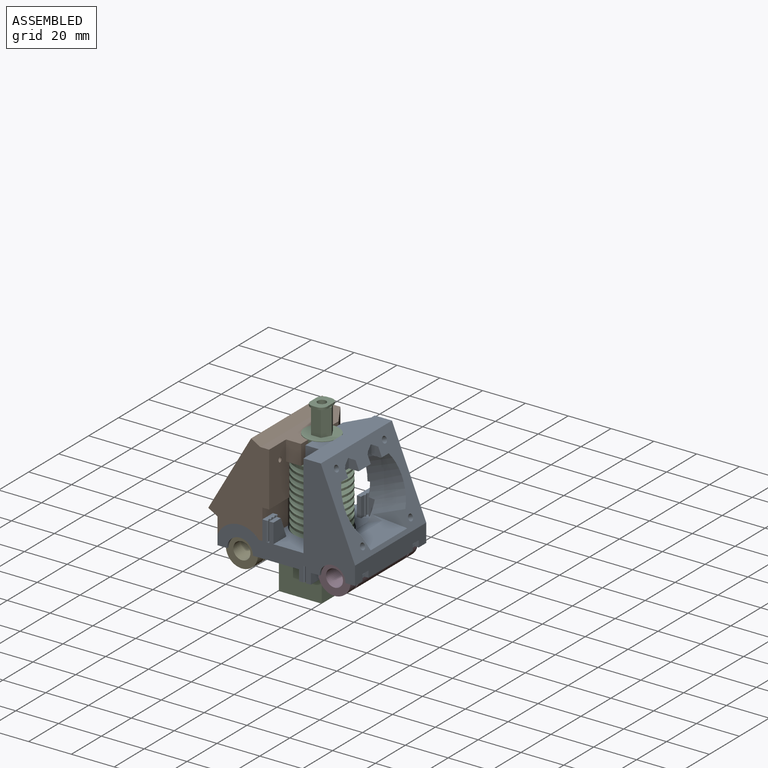
[diagram: assembled view]
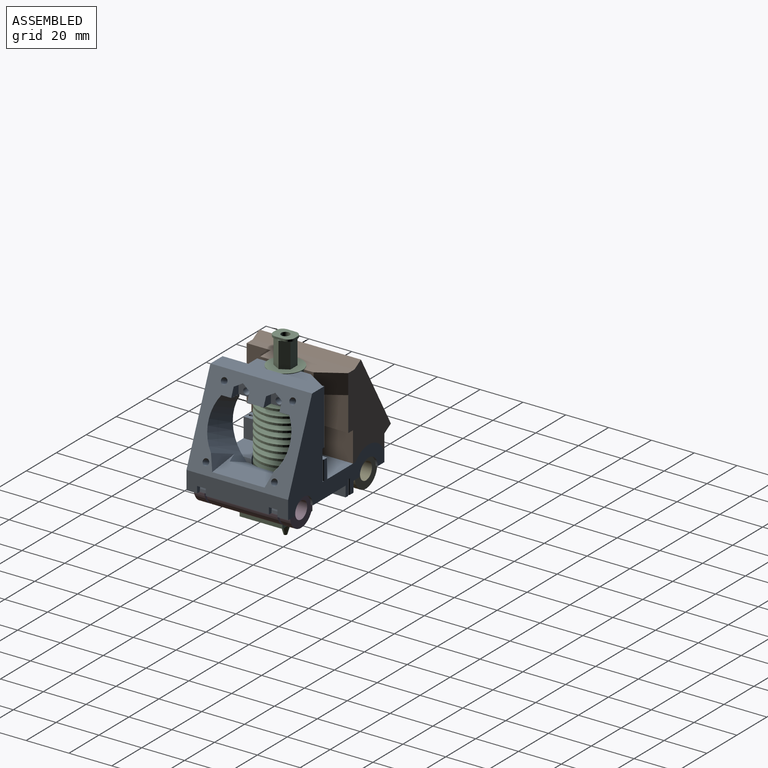
[diagram: assembled view, second angle]
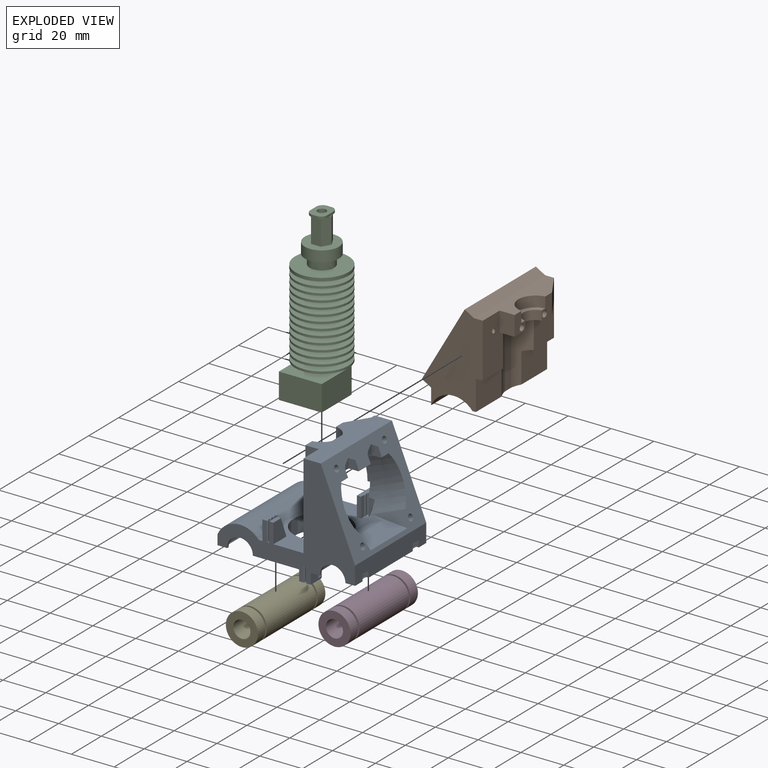
[diagram: exploded view]
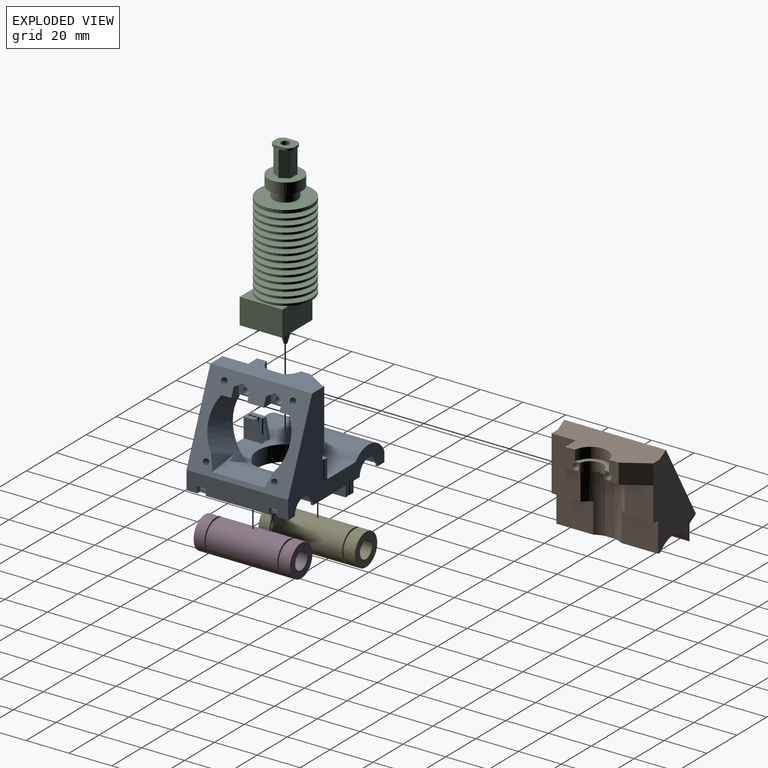
[diagram: exploded view, second angle]
ASSEMBLY  parts=5 mates=5
PART A: 166 faces, bbox 64.3x47.5x52.4 mm
  f0: plane 47.5x38.83mm, normal (0.92,0,0.38), area 894.3mm2, adj f2,f3,f4,f10,f36,f47,f54,f129
  f1: cylinder r=1.5mm len=14.2mm, axis (-1,0,0), area 133.9mm2, adj f37,f152
  f2: plane 10.17x4.6mm, normal (0.38,0,-0.92), area 23.3mm2, adj f0,f5,f130,f156,f157,f160
  f3: plane 7.76x0.47mm, normal (0.38,0,-0.92), area 3.9mm2, adj f0,f5,f149,f150,f155,f158
  f4: plane 4.6x0.47mm, normal (0.38,0,-0.92), area 2.3mm2, adj f0,f5,f129,f148,f151
  f5: plane 35.59x18.64mm, normal (0,0,-1), area 426.3mm2, adj f2,f3,f4,f21,f37,f38,f59,f100
  f6: cylinder r=13mm len=25.64mm, axis (0,0,1), area 270.7mm2, adj f7,f9,f17,f51,f52,f131,f134
  f7: plane 8.7x0.13mm, normal (0.92,0,0.38), area 1.2mm2, adj f6,f129,f131,f134
  f8: plane 47.5x40mm, normal (-1,0,0), area 332.7mm2, adj f28,f36,f47,f54,f55,f56,f130,f136
  f9: plane 47.5x31.25mm, normal (0,0,-1), area 647.1mm2, adj f6,f14,f15,f36,f39,f40,f41,f42
  f10: plane 47.5x8.57mm, normal (1,0,0), area 382.1mm2, adj f0,f11,f36,f47,f102,f103,f104,f120
  f11: plane 47.5x4.5mm, normal (0,0,-1), area 108.8mm2, adj f10,f36,f39,f40,f41,f43,f45,f47
  f12: plane 47.5x4.69mm, normal (-1,0,0), area 197.9mm2, adj f13,f36,f46,f47,f109,f110,f112,f114
  f13: plane 47.5x4.5mm, normal (0,0,-1), area 108.8mm2, adj f12,f36,f42,f44,f47,f48,f49,f50
  f14: plane 9x5mm, normal (-1,0,0), area 28.3mm2, adj f9,f47,f87,f88,f116,f118
  f15: plane 7.33x5mm, normal (1,0,0), area 26.8mm2, adj f9,f36,f64,f103,f105,f126
  f16: plane 9.1x2mm, normal (1,0,0), area 18.2mm2, adj f17,f80,f82,f99
  f17: plane 25.22x21.61mm, normal (0,0,1), area 297.7mm2, adj f6,f16,f18,f19,f20,f46,f47,f81
  f18: plane 9.1x1mm, normal (1,0,0), area 9.1mm2, adj f17,f80,f98,f99
  f19: plane 9.1x1mm, normal (1,0,0), area 9.1mm2, adj f17,f80,f97,f98
  f20: plane 9.1x1mm, normal (1,0,0), area 9.1mm2, adj f17,f80,f96,f97
  f21: plane 16x7.92mm, normal (-1,0,0), area 102.7mm2, adj f5,f47,f94,f129,f137
  f22: plane 7x2mm, normal (1,0,0), area 14mm2, adj f23,f87,f88,f89,f93
  f23: plane 9x1.2mm, normal (0,0,-1), area 9.3mm2, adj f22,f24,f25,f26,f47,f84,f89,f90
  f24: plane 7x1mm, normal (1,0,0), area 7mm2, adj f23,f87,f92,f93
  f25: plane 7x1mm, normal (1,0,0), area 7mm2, adj f23,f87,f91,f92
  f26: plane 7x1mm, normal (1,0,0), area 7mm2, adj f23,f87,f90,f91
  f27: plane 9.1x1.82mm, normal (1,0,0), area 8.3mm2, adj f28,f71,f79,f127
  f28: plane 21.61x20.85mm, normal (0,0,1), area 227.4mm2, adj f8,f27,f29,f30,f31,f36,f46,f53
  f29: plane 9.1x1mm, normal (1,0,0), area 9.1mm2, adj f28,f71,f78,f79
  f30: plane 9.1x1mm, normal (1,0,0), area 9.1mm2, adj f28,f71,f77,f78
  f31: plane 9.1x1mm, normal (1,0,0), area 9.1mm2, adj f28,f71,f76,f77
  f32: plane 7x1mm, normal (1,0,0), area 7mm2, adj f33,f65,f69,f70
  f33: plane 9x1.2mm, normal (0,0,-1), area 9.2mm2, adj f32,f34,f35,f36,f61,f62,f63,f67
  f34: plane 7x1mm, normal (1,0,0), area 7mm2, adj f33,f65,f68,f69
  f35: plane 7x1mm, normal (1,0,0), area 7mm2, adj f33,f65,f67,f68
  f36: plane 64.25x52.4mm, normal (0,-1,0), area 1119.4mm2, adj f0,f8,f9,f10,f11,f12,f13,f15
  f37: plane 9.3x6.84mm, normal (-1,0,0), area 45.2mm2, adj f1,f5,f56,f57,f58,f59,f100
  f38: plane 9.97x6.84mm, normal (-1,0,0), area 45.4mm2, adj f5,f55,f56,f57,f58,f59,f60,f160
  f39: cylinder r=8mm len=45.5mm, axis (0,1,0), area 1143.5mm2, adj f9,f11,f40,f41
  f40: plane 16x8mm, normal (0,1,0), area 44mm2, adj f9,f11,f39,f45
  f41: plane 16x8mm, normal (0,-1,0), area 44mm2, adj f9,f11,f39,f43
  f42: cylinder r=6mm len=12mm, axis (0,1,0), area 18.8mm2, adj f9,f13,f47,f50
  f43: cylinder r=6mm len=12mm, axis (0,1,0), area 18.8mm2, adj f9,f11,f41,f47
  f44: cylinder r=6mm len=12mm, axis (0,1,0), area 18.8mm2, adj f9,f13,f36,f49
  f45: cylinder r=6mm len=12mm, axis (0,1,0), area 18.8mm2, adj f9,f11,f36,f40
  f46: cylinder r=11.5mm len=47.5mm, axis (0,1,0), area 1104.8mm2, adj f12,f17,f28,f36,f47,f52
  f47: plane 64.25x52.4mm, normal (0,1,0), area 1083.1mm2, adj f0,f8,f9,f10,f11,f12,f13,f14
  f48: cylinder r=8mm len=45.5mm, axis (0,1,0), area 1143.5mm2, adj f9,f13,f49,f50
  f49: plane 16x8mm, normal (0,1,0), area 44mm2, adj f9,f13,f44,f48
  f50: plane 16x8mm, normal (0,-1,0), area 44mm2, adj f9,f13,f42,f48
  f51: plane 7.64x4.29mm, normal (-1,0,0), area 32.8mm2, adj f6,f9,f53,f131
  f52: plane 7.4x4.29mm, normal (1,0,0), area 31.7mm2, adj f6,f9,f46,f53
  f53: cylinder r=13mm len=25.64mm, axis (0,0,1), area 265.1mm2, adj f9,f28,f51,f52,f131,f132
  f54: plane 47.5x8.1mm, normal (0,0,1), area 384.9mm2, adj f0,f8,f36,f47
  f55: plane 9.97x7mm, normal (0,-1,0), area 69.8mm2, adj f8,f38,f56,f160
  f56: plane 36.25x7mm, normal (0,0,1), area 130.2mm2, adj f8,f37,f38,f55,f57,f100
  f57: cylinder r=8mm len=15.87mm, axis (0,0,1), area 115.4mm2, adj f37,f38,f56,f58
  f58: plane 15.87x6.98mm, normal (0,0,1), area 44mm2, adj f37,f38,f57,f59
  f59: cylinder r=5.75mm len=11.32mm, axis (0,0,1), area 68.8mm2, adj f5,f37,f38,f58
  f60: cylinder r=1.5mm len=14.2mm, axis (-1,0,0), area 133.9mm2, adj f38,f159
  f61: plane 9x7mm, normal (-1,0,0), area 58mm2, adj f33,f36,f63,f64,f126
  f62: plane 7x2mm, normal (1,0,0), area 9mm2, adj f33,f63,f65,f70,f125
  f63: plane 2x1.2mm, normal (0,-1,0), area 2.4mm2, adj f9,f33,f61,f62
  f64: plane 7x2.3mm, normal (0,0,-1), area 16.1mm2, adj f15,f36,f61,f126
  f65: plane 7x2.5mm, normal (0,0,-1), area 15.6mm2, adj f32,f34,f35,f36,f62,f66,f67,f68
  f66: plane 9x5mm, normal (-1,0,0), area 40mm2, adj f9,f36,f65,f125
  f67: cylinder r=0.5mm len=7mm, axis (0,0,-1), area 11mm2, adj f33,f35,f36,f65
  f68: cylinder r=0.5mm len=7mm, axis (0,0,-1), area 10.9mm2, adj f33,f34,f35,f65
  f69: cylinder r=0.5mm len=7mm, axis (0,0,-1), area 10.9mm2, adj f32,f33,f34,f65
  f70: cylinder r=0.5mm len=7mm, axis (0,0,-1), area 10.9mm2, adj f32,f33,f62,f65
  f71: plane 7x2.51mm, normal (0,0,1), area 15.6mm2, adj f27,f29,f30,f31,f36,f72,f76,f77
  f72: plane 9.1x8.82mm, normal (-1,0,0), area 72mm2, adj f28,f36,f71,f127
  f73: plane 5x2mm, normal (0,0,1), area 10mm2, adj f36,f74,f75,f128
  f74: plane 9.1x8.64mm, normal (-1,0,0), area 62.1mm2, adj f28,f36,f73,f128
  f75: plane 9.1x8.64mm, normal (1,0,0), area 62.1mm2, adj f28,f36,f73,f128
  f76: cylinder r=0.5mm len=9.1mm, axis (0,0,1), area 14.3mm2, adj f28,f31,f36,f71
  f77: cylinder r=0.5mm len=9.1mm, axis (0,0,1), area 14.4mm2, adj f28,f30,f31,f71
  f78: cylinder r=0.5mm len=9.1mm, axis (0,0,1), area 14.5mm2, adj f28,f29,f30,f71
  f79: cylinder r=0.5mm len=9.1mm, axis (0,0,1), area 14.5mm2, adj f27,f28,f29,f71
  f80: plane 9x2.48mm, normal (0,0,1), area 19.4mm2, adj f16,f18,f19,f20,f47,f81,f82,f96
  f81: plane 9.1x9mm, normal (-1,0,0), area 81.9mm2, adj f17,f47,f80,f82
  f82: plane 9.1x1.98mm, normal (0,-1,0), area 18mm2, adj f16,f17,f80,f81
  f83: plane 9x1.75mm, normal (0,0,-1), area 15.8mm2, adj f47,f84,f85,f86
  f84: plane 9x7mm, normal (-1,0,0), area 63mm2, adj f23,f47,f83,f86,f89
  f85: plane 9x5mm, normal (1,0,0), area 45mm2, adj f9,f47,f83,f86
  f86: plane 5x1.75mm, normal (0,-1,0), area 8.7mm2, adj f9,f83,f84,f85
  f87: plane 9x2.8mm, normal (0,0,-1), area 22.2mm2, adj f14,f22,f24,f25,f26,f47,f88,f90
  f88: plane 5x2.3mm, normal (0,-1,0), area 9.2mm2, adj f9,f14,f22,f87,f116
  f89: plane 2x1.2mm, normal (0,1,0), area 2.4mm2, adj f9,f22,f23,f84
  f90: cylinder r=0.5mm len=7mm, axis (0,0,-1), area 11mm2, adj f23,f26,f47,f87
  f91: cylinder r=0.5mm len=7mm, axis (0,0,-1), area 10.9mm2, adj f23,f25,f26,f87
  f92: cylinder r=0.5mm len=7mm, axis (0,0,-1), area 10.9mm2, adj f23,f24,f25,f87
  f93: cylinder r=0.5mm len=7mm, axis (0,0,-1), area 10.8mm2, adj f22,f23,f24,f87
  f94: plane 4.75x1.18mm, normal (0,0,-1), area 5.6mm2, adj f21,f47,f95,f129
  f95: plane 14.13x5.74mm, normal (-1,0,0), area 76.7mm2, adj f17,f47,f94,f129,f135
  f96: cylinder r=0.5mm len=9.1mm, axis (0,0,1), area 14.3mm2, adj f17,f20,f47,f80
  f97: cylinder r=0.5mm len=9.1mm, axis (0,0,1), area 14.3mm2, adj f17,f19,f20,f80
  f98: cylinder r=0.5mm len=9.1mm, axis (0,0,1), area 14.3mm2, adj f17,f18,f19,f80
  f99: cylinder r=0.5mm len=9.1mm, axis (0,0,1), area 14.3mm2, adj f16,f17,f18,f80
  f100: plane 11.25x9.3mm, normal (-0.85,0.53,0), area 123.2mm2, adj f5,f37,f47,f56
  f101: cylinder r=8.75mm len=17.5mm, axis (0,-1,0), area 110mm2, adj f9,f11,f102,f103
  f102: plane 21.45x10.5mm, normal (0,-1,0), area 63.6mm2, adj f9,f10,f11,f101,f104,f105,f106,f140
  f103: plane 21.45x14.67mm, normal (0,1,0), area 67.6mm2, adj f9,f10,f11,f15,f101,f104,f105,f106
  f104: cylinder r=10.95mm len=7.39mm, axis (0,-1,0), area 40.2mm2, adj f10,f102,f103,f106,f140
  f105: cylinder r=10.95mm len=14.67mm, axis (0,-1,0), area 69.7mm2, adj f15,f102,f103,f106,f126
  f106: plane 6.22x4.01mm, normal (0,0,-1), area 19.2mm2, adj f102,f103,f104,f105,f140,f141
  f107: cylinder r=10.95mm len=10.5mm, axis (0,-1,0), area 56.2mm2, adj f9,f109,f110,f111
  f108: cylinder r=8.75mm len=17.5mm, axis (0,-1,0), area 110mm2, adj f9,f13,f109,f110
  f109: plane 21.45x10.5mm, normal (0,-1,0), area 65.3mm2, adj f9,f12,f13,f107,f108,f111,f112
  f110: plane 21.45x10.5mm, normal (0,1,0), area 65.3mm2, adj f9,f12,f13,f107,f108,f111,f112
  f111: plane 6.21x4mm, normal (0,0,-1), area 24.9mm2, adj f107,f109,f110,f112
  f112: cylinder r=10.95mm len=7.39mm, axis (0,-1,0), area 43.6mm2, adj f12,f109,f110,f111
  f113: cylinder r=8.75mm len=17.5mm, axis (0,1,0), area 110mm2, adj f9,f13,f114,f118
  f114: plane 21.45x10.5mm, normal (0,1,0), area 65.3mm2, adj f9,f12,f13,f113,f115,f116,f117
  f115: cylinder r=10.95mm len=7.39mm, axis (0,1,0), area 43.6mm2, adj f12,f114,f117,f118
  f116: cylinder r=10.95mm len=14.67mm, axis (0,1,0), area 73.3mm2, adj f14,f88,f114,f117,f118
  f117: plane 6.21x4mm, normal (0,0,-1), area 24.9mm2, adj f114,f115,f116,f118
  f118: plane 21.45x14.67mm, normal (0,-1,0), area 67.6mm2, adj f9,f12,f13,f14,f113,f115,f116,f117
  f119: cylinder r=10.95mm len=10.5mm, axis (0,1,0), area 56.2mm2, adj f9,f122,f123,f124
  f120: cylinder r=10.95mm len=7.39mm, axis (0,1,0), area 40.2mm2, adj f10,f122,f123,f124,f138
  f121: cylinder r=8.75mm len=17.5mm, axis (0,1,0), area 110mm2, adj f9,f11,f122,f123
  f122: plane 21.45x10.5mm, normal (0,1,0), area 63.6mm2, adj f9,f10,f11,f119,f120,f121,f124,f138
  f123: plane 21.45x10.5mm, normal (0,-1,0), area 65.3mm2, adj f9,f10,f11,f119,f120,f121,f124
  f124: plane 6.22x4.01mm, normal (0,0,-1), area 19.2mm2, adj f119,f120,f122,f123,f138,f139
  f125: plane 5x2mm, normal (0,0.93,-0.37), area 10.8mm2, adj f9,f62,f65,f66
  f126: plane 5.03x2.33mm, normal (0,0.93,-0.37), area 9.9mm2, adj f9,f15,f61,f64,f105
  f127: plane 9.1x2mm, normal (0,0.98,0.2), area 18.6mm2, adj f27,f28,f71,f72
  f128: plane 9.1x3.64mm, normal (0,0.93,0.37), area 19.6mm2, adj f28,f73,f74,f75
  f129: cylinder r=19mm len=30.2mm, axis (0.92,0,0.38), area 406mm2, adj f0,f4,f7,f21,f94,f95,f131,f133
  f130: cylinder r=19mm len=31.92mm, axis (0.92,0,0.38), area 460.9mm2, adj f0,f2,f8,f28,f131,f132,f136,f161
  f131: plane 24.58x11.28mm, normal (-0.38,0,0.92), area 207.4mm2, adj f6,f7,f51,f53,f129,f130,f132,f161
  f132: plane 4.1x1.64mm, normal (0.92,0,0.38), area 5.2mm2, adj f28,f53,f130,f131
  f133: plane 3.22x0.47mm, normal (0,0,-1), area 0.7mm2, adj f129,f134,f135
  f134: plane 14.14x7.98mm, normal (-1,0,0), area 23.2mm2, adj f6,f7,f17,f129,f133,f135
  f135: plane 7.98x3.2mm, normal (0,-1,0), area 25.5mm2, adj f17,f95,f133,f134
  f136: plane 1.93x0.8mm, normal (0,1,0), area 0.8mm2, adj f8,f130,f160
  f137: plane 11.64x4.8mm, normal (0,-1,0), area 27.9mm2, adj f5,f21,f129
  f138: cylinder r=1.5mm len=8.54mm, axis (0.92,0,0.38), area 65.2mm2, adj f0,f120,f122,f124,f139
  f139: plane 2.95x2.15mm, normal (0.92,0,0.38), area 2.6mm2, adj f122,f124,f138
  f140: cylinder r=1.5mm len=8.54mm, axis (0.92,0,0.38), area 65.2mm2, adj f0,f102,f104,f106,f141
  f141: plane 2.95x2.15mm, normal (0.92,0,0.38), area 2.6mm2, adj f102,f106,f140
  f142: cylinder r=1.5mm len=8.54mm, axis (0.92,0,0.38), area 75.4mm2, adj f0,f143
  f143: plane 3x2.77mm, normal (0.92,0,0.38), area 7.1mm2, adj f142
  f144: cylinder r=1.5mm len=8.54mm, axis (0.92,0,0.38), area 75.4mm2, adj f0,f145
  f145: plane 3x2.77mm, normal (0.92,0,0.38), area 7.1mm2, adj f144
  f146: plane 3.7x3.21mm, normal (0,0.5,-0.87), area 11.8mm2, adj f0,f147,f150,f152
  f147: plane 3.7x3.21mm, normal (0,-0.5,-0.87), area 11.8mm2, adj f0,f146,f151,f152
  f148: plane 4.47x0.02mm, normal (0,-0.5,0.87), area 0.1mm2, adj f4,f5,f151,f152
  f149: plane 4.47x0.02mm, normal (0,0.5,0.87), area 0.1mm2, adj f3,f5,f150,f152
  f150: plane 4.9x4.27mm, normal (0,1,0), area 17.4mm2, adj f0,f3,f146,f149,f152
  f151: plane 4.9x4.27mm, normal (0,-1,0), area 17.4mm2, adj f0,f4,f147,f148,f152
  f152: plane 7.4x6.42mm, normal (1,0,0), area 32.6mm2, adj f1,f5,f146,f147,f148,f149,f150,f151
  f153: plane 3.7x3.21mm, normal (0,0.5,-0.87), area 11.8mm2, adj f0,f154,f157,f159
  f154: plane 3.7x3.21mm, normal (0,-0.5,-0.87), area 11.8mm2, adj f0,f153,f158,f159
  f155: plane 4.47x0.02mm, normal (0,-0.5,0.87), area 0.1mm2, adj f3,f5,f158,f159
  f156: plane 4.47x0.02mm, normal (0,0.5,0.87), area 0.1mm2, adj f2,f5,f157,f159
  f157: plane 4.9x4.27mm, normal (0,1,0), area 17.4mm2, adj f0,f2,f153,f156,f159
  f158: plane 4.9x4.27mm, normal (0,-1,0), area 17.4mm2, adj f0,f3,f154,f155,f159
  f159: plane 7.4x6.42mm, normal (1,0,0), area 32.6mm2, adj f5,f60,f153,f154,f155,f156,f157,f158
  f160: plane 18.64x4mm, normal (0,0.71,-0.71), area 45mm2, adj f2,f5,f8,f38,f55,f136
  f161: plane 29.42x18.31mm, normal (0,0,1), area 316.9mm2, adj f0,f129,f130,f131,f162,f163,f164,f165
  f162: plane 0.4x0.14mm, normal (0,-1,0), area 0mm2, adj f0,f161,f164
  f163: plane 0.4x0.14mm, normal (0,1,0), area 0mm2, adj f0,f161,f165
  f164: plane 18.26x6.45mm, normal (-0.13,-0.94,0.31), area 62.7mm2, adj f0,f129,f161,f162
  f165: plane 18.26x6.45mm, normal (-0.13,0.94,0.31), area 62.7mm2, adj f0,f130,f161,f163
PART B: 60 faces, bbox 35.5x47.6x44.7 mm
  f0: plane 30.05x13.04mm, normal (0,0,1), area 383.2mm2, adj f27,f43,f50,f52,f57
  f1: plane 35.08x10.13mm, normal (-0.87,0,0.5), area 215mm2, adj f31,f36,f37,f38,f39,f51
  f2: plane 47.5x7.47mm, normal (-1,0,0), area 240.8mm2, adj f13,f14,f24,f40,f43,f49,f52,f53
  f3: cylinder r=1mm len=6.2mm, axis (-0.87,0,0.5), area 37.7mm2, adj f42,f59
  f4: cylinder r=1mm len=6.2mm, axis (-0.87,0,0.5), area 37.7mm2, adj f42,f46
  f5: cylinder r=1.5mm len=12.63mm, axis (1,0,0), area 119mm2, adj f15,f39
  f6: plane 16x13.5mm, normal (1,0,0), area 216mm2, adj f10,f14,f17,f33
  f7: plane 25.3x13.5mm, normal (1,0,0), area 317mm2, adj f13,f17,f18,f20,f23,f30,f34
  f8: plane 21.61x1.62mm, normal (0,0,-1), area 30.7mm2, adj f12,f13,f24,f34
  f9: plane 21.61x1.62mm, normal (0,0,-1), area 30.7mm2, adj f11,f14,f24,f33
  f10: plane 17.15x3.2mm, normal (0,0,-1), area 48.3mm2, adj f6,f11,f14,f33
  f11: plane 17.15x14.1mm, normal (1,0,0), area 241.8mm2, adj f9,f10,f14,f33
  f12: plane 17.15x14.1mm, normal (1,0,0), area 241.8mm2, adj f8,f13,f23,f34
  f13: plane 44.61x28.46mm, normal (0,-1,0), area 710.9mm2, adj f2,f7,f8,f12,f18,f23,f24,f40
  f14: plane 44.61x28.46mm, normal (0,1,0), area 710.9mm2, adj f2,f6,f9,f10,f11,f18,f24,f40
  f15: plane 9.3x6.84mm, normal (1,0,0), area 45.1mm2, adj f5,f16,f17,f18,f21,f22,f54
  f16: cylinder r=5.75mm len=11.32mm, axis (0,0,1), area 69mm2, adj f15,f17,f19,f21
  f17: plane 36.25x11.82mm, normal (0,0,-1), area 244.8mm2, adj f6,f7,f15,f16,f19,f20,f33,f34
  f18: plane 47.5x11.13mm, normal (0,0,1), area 325.7mm2, adj f7,f13,f14,f15,f19,f20,f22,f41
  f19: plane 9.3x6.84mm, normal (1,0,0), area 45.1mm2, adj f16,f17,f18,f20,f21,f22,f32
  f20: plane 9.3x7mm, normal (0,-1,0), area 65.1mm2, adj f7,f17,f18,f19
  f21: plane 15.87x7mm, normal (0,0,1), area 44.1mm2, adj f15,f16,f19,f22
  f22: cylinder r=8mm len=15.87mm, axis (0,0,1), area 115.6mm2, adj f15,f18,f19,f21
  f23: plane 17.15x3.2mm, normal (0,0,-1), area 48.3mm2, adj f7,f12,f13,f34
  f24: cylinder r=11.5mm len=47.5mm, axis (0,-1,0), area 1103.1mm2, adj f2,f8,f9,f13,f14,f25,f26,f27
  f25: cylinder r=1mm len=4.92mm, axis (-0.87,0,0.5), area 18.3mm2, adj f24,f26,f43,f56
  f26: plane 2x1.33mm, normal (-0.87,0,0.5), area 2.6mm2, adj f24,f25
  f27: cylinder r=1mm len=4.92mm, axis (-0.87,0,0.5), area 18.3mm2, adj f0,f24,f28,f43
  f28: plane 2x1.33mm, normal (-0.87,0,0.5), area 2.6mm2, adj f24,f27
  f29: cylinder r=1mm len=11.96mm, axis (-0.87,0,0.5), area 75.9mm2, adj f42,f55
  f30: cylinder r=1mm len=11.96mm, axis (-0.87,0,0.5), area 75.9mm2, adj f7,f42
  f31: cylinder r=19mm len=38mm, axis (-0.87,0,0.5), area 716.3mm2, adj f1,f42,f44,f45,f46,f47,f58
  f32: cylinder r=1.5mm len=12.63mm, axis (1,0,0), area 119mm2, adj f19,f36
  f33: cylinder r=13mm len=30.1mm, axis (0,0,-1), area 221.7mm2, adj f6,f9,f10,f11,f17,f35
  f34: cylinder r=13mm len=30.1mm, axis (0,0,-1), area 221.7mm2, adj f7,f8,f12,f17,f23,f35
  f35: plane 30.1x4.29mm, normal (1,0,0), area 129mm2, adj f17,f24,f33,f34
  f36: plane 7x6.05mm, normal (-1,0,0), area 28.3mm2, adj f1,f32,f37
  f37: cylinder r=3.5mm len=7mm, axis (-1,0,0), area 34.3mm2, adj f1,f36
  f38: cylinder r=3.5mm len=7mm, axis (-1,0,0), area 34.3mm2, adj f1,f39
  f39: plane 7x6.05mm, normal (-1,0,0), area 28.3mm2, adj f1,f5,f38
  f40: plane 47.5x4.33mm, normal (-0.5,0,-0.87), area 237.5mm2, adj f2,f13,f14,f42
  f41: plane 47.5x4.33mm, normal (0.5,0,0.87), area 237.5mm2, adj f13,f14,f18,f42
  f42: plane 47.5x34.64mm, normal (-0.87,0,0.5), area 753.3mm2, adj f3,f4,f13,f14,f29,f30,f31,f40
  f43: plane 38x7.49mm, normal (-0.87,0,0.5), area 328.3mm2, adj f0,f2,f25,f27,f52,f53,f56
  f44: plane 1.91x1.46mm, normal (0.87,0,-0.5), area 1.6mm2, adj f31,f51,f57
  f45: plane 6.32x3.65mm, normal (0.87,0,-0.5), area 3.5mm2, adj f31,f51,f52
  f46: plane 19x16.45mm, normal (0.87,0,-0.5), area 74.3mm2, adj f4,f31,f48,f52
  f47: plane 19x3.75mm, normal (0.87,0,-0.5), area 20.9mm2, adj f31,f48,f53,f56,f57
  f48: plane 38x1.35mm, normal (1,0,0), area 51.1mm2, adj f46,f47,f49,f52,f53
  f49: plane 38x2.37mm, normal (0.87,0,-0.5), area 103.8mm2, adj f2,f48,f52,f53
  f50: plane 38x22mm, normal (-1,0,0), area 747.9mm2, adj f0,f51,f52,f57
  f51: plane 38x2.79mm, normal (0,0,-1), area 105.9mm2, adj f1,f44,f45,f50,f52,f57
  f52: plane 29.49x17.3mm, normal (0,-1,0), area 212.5mm2, adj f0,f2,f43,f45,f46,f48,f49,f50
  f53: plane 7.49x4.32mm, normal (0,1,0), area 11.5mm2, adj f2,f43,f47,f48,f49,f56
  f54: plane 11.25x9.3mm, normal (0.85,0.53,0), area 123.2mm2, adj f14,f15,f17,f18
  f55: plane 2.31x2mm, normal (-1,0,0), area 3.6mm2, adj f29
  f56: plane 8.07x6.27mm, normal (0,0,-1), area 26.2mm2, adj f25,f43,f47,f53,f57
  f57: plane 22x15.49mm, normal (0,0.94,0.34), area 213.9mm2, adj f0,f44,f47,f50,f51,f56,f58
  f58: plane 17.11x9.88mm, normal (-0.87,0,0.5), area 43.2mm2, adj f31,f57
  f59: plane 2x1.73mm, normal (-0.87,0,0.5), area 3.1mm2, adj f3
PART C: 89 faces, bbox 26.9x25x84.5 mm
  f0: plane 2.14x0.62mm, normal (0,0,1), area 0.7mm2, adj f69,f70,f82
  f1: plane 20x12mm, normal (-1,0,0), area 240mm2, adj f2,f4,f5,f6
  f2: plane 20x12mm, normal (0,-1,0), area 240mm2, adj f1,f3,f5,f6
  f3: plane 20x12mm, normal (1,0,0), area 240mm2, adj f2,f4,f5,f6
  f4: plane 20x12mm, normal (0,1,0), area 240mm2, adj f1,f3,f5,f6
  f5: plane 20x20mm, normal (0,0,1), area 392mm2, adj f1,f2,f3,f4,f7
  f6: plane 20x20mm, normal (0,0,-1), area 372.6mm2, adj f1,f2,f3,f4,f68
  f7: cylinder r=1.6mm len=3.2mm, axis (0,0,-1), area 20.1mm2, adj f5,f8
  f8: plane 25x25mm, normal (0,0,-1), area 482.8mm2, adj f7,f9
  f9: cylinder r=12.5mm len=25mm, axis (0,0,1), area 78.5mm2, adj f8,f10
  f10: plane 25x25mm, normal (0,0,1), area 387.4mm2, adj f9,f11
  f11: cylinder r=5.74mm len=11.48mm, axis (0,0,1), area 72.1mm2, adj f10,f12
  f12: plane 25x25mm, normal (0,0,-1), area 387.4mm2, adj f11,f13
  f13: cylinder r=12.5mm len=25mm, axis (0,0,1), area 78.5mm2, adj f12,f14
  f14: plane 25x25mm, normal (0,0,1), area 387.4mm2, adj f13,f15
  f15: cylinder r=5.74mm len=11.48mm, axis (0,0,1), area 72.1mm2, adj f14,f16
  f16: plane 25x25mm, normal (0,0,-1), area 387.4mm2, adj f15,f17
  f17: cylinder r=12.5mm len=25mm, axis (0,0,1), area 78.5mm2, adj f16,f18
  f18: plane 25x25mm, normal (0,0,1), area 387.4mm2, adj f17,f19
  f19: cylinder r=5.74mm len=11.48mm, axis (0,0,1), area 72.1mm2, adj f18,f20
  f20: plane 25x25mm, normal (0,0,-1), area 387.4mm2, adj f19,f21
  f21: cylinder r=12.5mm len=25mm, axis (0,0,1), area 78.5mm2, adj f20,f22
  f22: plane 25x25mm, normal (0,0,1), area 387.4mm2, adj f21,f23
  f23: cylinder r=5.74mm len=11.48mm, axis (0,0,1), area 72.1mm2, adj f22,f24
  f24: plane 25x25mm, normal (0,0,-1), area 387.4mm2, adj f23,f25
  f25: cylinder r=12.5mm len=25mm, axis (0,0,1), area 78.5mm2, adj f24,f26
  f26: plane 25x25mm, normal (0,0,1), area 387.4mm2, adj f25,f27
  f27: cylinder r=5.74mm len=11.48mm, axis (0,0,1), area 72.1mm2, adj f26,f28
  f28: plane 25x25mm, normal (0,0,-1), area 387.4mm2, adj f27,f29
  f29: cylinder r=12.5mm len=25mm, axis (0,0,1), area 78.5mm2, adj f28,f30
  f30: plane 25x25mm, normal (0,0,1), area 387.4mm2, adj f29,f31
  f31: cylinder r=5.74mm len=11.48mm, axis (0,0,1), area 72.1mm2, adj f30,f32
  f32: plane 25x25mm, normal (0,0,-1), area 387.4mm2, adj f31,f33
  f33: cylinder r=12.5mm len=25mm, axis (0,0,1), area 78.5mm2, adj f32,f34
  f34: plane 25x25mm, normal (0,0,1), area 387.4mm2, adj f33,f35
  f35: cylinder r=5.74mm len=11.48mm, axis (0,0,1), area 72.1mm2, adj f34,f36
  f36: plane 25x25mm, normal (0,0,-1), area 387.4mm2, adj f35,f37
  f37: cylinder r=12.5mm len=25mm, axis (0,0,1), area 78.5mm2, adj f36,f38
  f38: plane 25x25mm, normal (0,0,1), area 387.4mm2, adj f37,f39
  f39: cylinder r=5.74mm len=11.48mm, axis (0,0,1), area 72.1mm2, adj f38,f40
  f40: plane 25x25mm, normal (0,0,-1), area 387.4mm2, adj f39,f41
  f41: cylinder r=12.5mm len=25mm, axis (0,0,1), area 78.5mm2, adj f40,f42
  f42: plane 25x25mm, normal (0,0,1), area 387.4mm2, adj f41,f43
  f43: cylinder r=5.74mm len=11.48mm, axis (0,0,1), area 72.1mm2, adj f42,f44
  f44: plane 25x25mm, normal (0,0,-1), area 387.4mm2, adj f43,f45
  f45: cylinder r=12.5mm len=25mm, axis (0,0,1), area 78.5mm2, adj f44,f46
  f46: plane 25x25mm, normal (0,0,1), area 387.4mm2, adj f45,f47
  f47: cylinder r=5.74mm len=11.48mm, axis (0,0,1), area 72.1mm2, adj f46,f48
  f48: plane 25x25mm, normal (0,0,-1), area 387.4mm2, adj f47,f49
  f49: cylinder r=12.5mm len=25mm, axis (0,0,1), area 78.5mm2, adj f48,f50
  f50: plane 25x25mm, normal (0,0,1), area 387.4mm2, adj f49,f51
  f51: cylinder r=5.74mm len=11.48mm, axis (0,0,1), area 72.1mm2, adj f50,f52
  f52: plane 25x25mm, normal (0,0,-1), area 387.4mm2, adj f51,f53
  f53: cylinder r=12.5mm len=25mm, axis (0,0,1), area 78.5mm2, adj f52,f54
  f54: plane 25x25mm, normal (0,0,1), area 387.4mm2, adj f53,f55
  f55: cylinder r=5.74mm len=11.48mm, axis (0,0,1), area 72.1mm2, adj f54,f56
  f56: plane 25x25mm, normal (0,0,-1), area 387.4mm2, adj f55,f57
  f57: cylinder r=12.5mm len=25mm, axis (0,0,1), area 78.5mm2, adj f56,f58
  f58: plane 25x25mm, normal (0,0,1), area 387.4mm2, adj f57,f59
  f59: cylinder r=5.74mm len=11.48mm, axis (0,0,1), area 72.1mm2, adj f58,f60
  f60: plane 25x25mm, normal (0,0,-1), area 387.4mm2, adj f59,f61
  f61: cylinder r=12.5mm len=25mm, axis (0,0,1), area 117.8mm2, adj f60,f62
  f62: plane 25x25mm, normal (0,0,1), area 387.4mm2, adj f61,f63
  f63: cylinder r=5.74mm len=11.48mm, axis (0,0,1), area 162.3mm2, adj f62,f64
  f64: plane 15.98x15.98mm, normal (0,0,-1), area 97.1mm2, adj f63,f65
  f65: cylinder r=7.99mm len=15.98mm, axis (0,0,1), area 251mm2, adj f64,f66
  f66: plane 15.98x15.98mm, normal (0,0,1), area 145.1mm2, adj f65,f69,f70,f71,f72,f73,f74
  f67: plane 1.5x1.5mm, normal (0,0,-1), area 1.8mm2, adj f68
  f68: cone r=2.95mm half-angle=16.4deg, axis (0,0,1), area 90.9mm2, adj f6,f67
  f69: plane 12x4mm, normal (0.5,0.87,0), area 55.4mm2, adj f0,f66,f70,f74,f86
  f70: plane 12x4mm, normal (-0.5,0.87,0), area 55.4mm2, adj f0,f66,f69,f71,f76
  f71: plane 12x4.62mm, normal (-1,0,0), area 55.4mm2, adj f66,f70,f72,f76
  f72: plane 12x4mm, normal (-0.5,-0.87,0), area 55.4mm2, adj f66,f71,f73,f75,f76
  f73: plane 12x4mm, normal (0.5,-0.87,0), area 55.4mm2, adj f66,f72,f74,f75,f86
  f74: plane 12x4.62mm, normal (1,0,0), area 55.4mm2, adj f66,f69,f73,f86
  f75: plane 2.14x0.62mm, normal (0,0,1), area 0.7mm2, adj f72,f73,f78
  f76: plane 8x3.93mm, normal (0,0,-1), area 9.1mm2, adj f70,f71,f72,f77,f78,f82,f83,f84
  f77: cylinder r=3mm len=3mm, axis (0,0,-1), area 4.7mm2, adj f76,f78,f84,f85
  f78: plane 4x1mm, normal (0,-1,0), area 4mm2, adj f75,f76,f77,f79,f85,f86
  f79: cylinder r=3mm len=3mm, axis (0,0,-1), area 4.7mm2, adj f78,f80,f85,f86
  f80: plane 2x1mm, normal (1,0,0), area 2mm2, adj f79,f81,f85,f86
  f81: cylinder r=3mm len=3mm, axis (0,0,-1), area 4.7mm2, adj f80,f82,f85,f86
  f82: plane 4x1mm, normal (0,1,0), area 4mm2, adj f0,f76,f81,f83,f85,f86
  f83: cylinder r=3mm len=3mm, axis (0,0,-1), area 4.7mm2, adj f76,f82,f84,f85
  f84: plane 2x1mm, normal (-1,0,0), area 2mm2, adj f76,f77,f83,f85
  f85: plane 10x8mm, normal (0,0,1), area 59.7mm2, adj f77,f78,f79,f80,f81,f82,f83,f84
  f86: plane 8x3.93mm, normal (0,0,-1), area 9.1mm2, adj f69,f73,f74,f78,f79,f80,f81,f82
  f87: cylinder r=2mm len=50.4mm, axis (0,0,1), area 633.3mm2, adj f85,f88
  f88: plane 4x4mm, normal (0,0,1), area 12.6mm2, adj f87
PART D: 12 faces, bbox 15x15x45 mm
  f0: cylinder r=7.5mm len=15mm, axis (0,0,-1), area 235.6mm2, adj f4,f11
  f1: cylinder r=7.5mm len=33mm, axis (0,0,-1), area 1555.1mm2, adj f7,f10
  f2: cylinder r=7.5mm len=15mm, axis (0,0,-1), area 235.6mm2, adj f3,f8
  f3: plane 15x15mm, normal (0,0,1), area 126.4mm2, adj f2,f5
  f4: plane 15x15mm, normal (0,0,-1), area 126.4mm2, adj f0,f5
  f5: cylinder r=4mm len=45mm, axis (0,0,1), area 1131mm2, adj f3,f4
  f6: cylinder r=6.5mm len=13mm, axis (0,0,1), area 40.8mm2, adj f7,f8
  f7: plane 15x15mm, normal (0,0,1), area 44mm2, adj f1,f6
  f8: plane 15x15mm, normal (0,0,-1), area 44mm2, adj f2,f6
  f9: cylinder r=6.5mm len=13mm, axis (0,0,-1), area 40.8mm2, adj f10,f11
  f10: plane 15x15mm, normal (0,0,-1), area 44mm2, adj f1,f9
  f11: plane 15x15mm, normal (0,0,1), area 44mm2, adj f0,f9
PART E: same geometry as D
PLACE A at identity fixed
PLACE B at identity
PLACE C rot(axis=(0,0,-1),90deg) t=(71.59,-84.46,-17)mm
PLACE D rot(axis=(1,0,0),90deg) t=(101.67,-1.25,60.73)mm
PLACE E rot(axis=(1,0,0),90deg) t=(58.42,-1.25,60.73)mm
MATE fastened D.f0 <-> A.f39  axis (0,1,0) through (43.25,-23.75,0)mm
MATE fastened E.f0 <-> A.f42  axis (0,1,0) through (0,-23.75,0)mm
MATE fastened B.f24 <-> A.f42  axis (0,-1,0) through (0,-23.75,0)mm
MATE planar C.f7 <-> A.f6  axis (0,0,1) through (21.62,-23.75,0)mm
MATE cylindrical C.f7 <-> A.f6  axis (0,0,-1) through (21.62,-23.75,-24.5)mm
